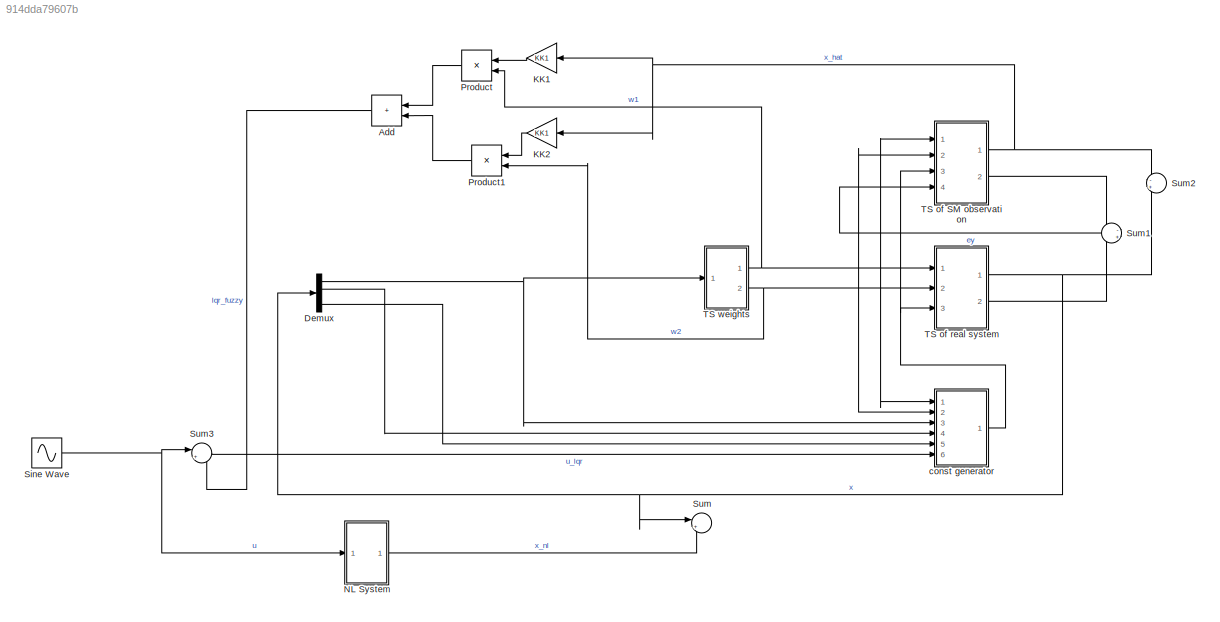
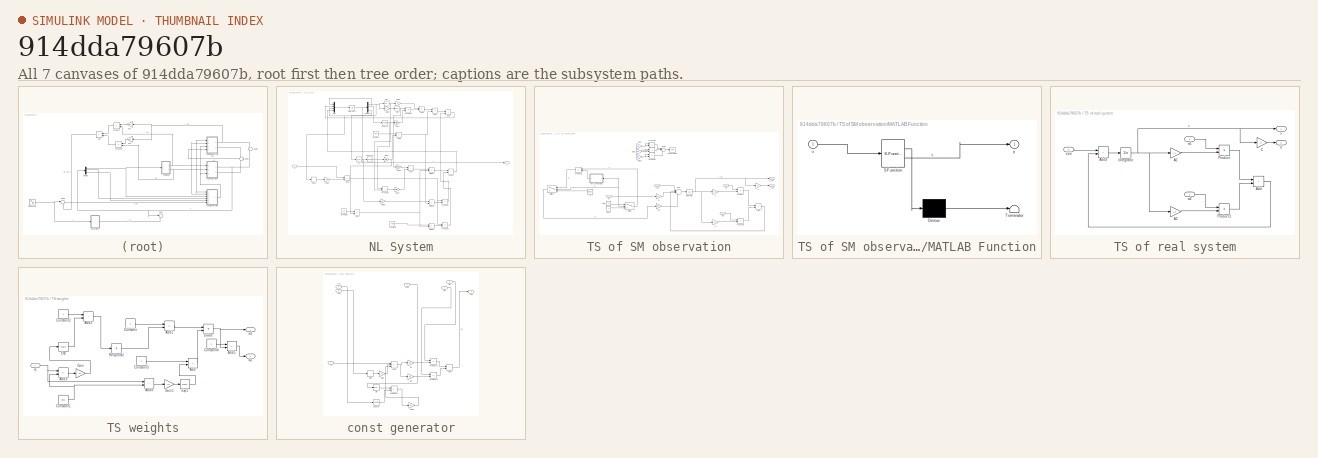
[diagram: thumbnail index - all 7 canvases of the model, root first then tree order]
MODEL slx_914dda79607b
KIND model
CONFIG AbsTol = auto
CONFIG EnableMultiTasking = off
CONFIG FixedStep = auto
CONFIG MaxStep = auto
CONFIG MinStep = auto
CONFIG RelTol = 1e-3
CONFIG SampleTimeConstraint = Unconstrained
CONFIG Solver = VariableStepAuto
CONFIG SolverName = VariableStepAuto
CONFIG StartTime = 0.0
CONFIG StopTime = 150
BLOCK [Sum] Add
  IconShape = rectangular
  Ports = [2, 1]
BLOCK [Demux] Demux
  Ports = [1, 4]
BLOCK [Gain] KK1
  Gain = KK1
  Multiplication = Matrix(K*u)
BLOCK [Gain] KK2
  Gain = KK1
  Multiplication = Matrix(K*u)
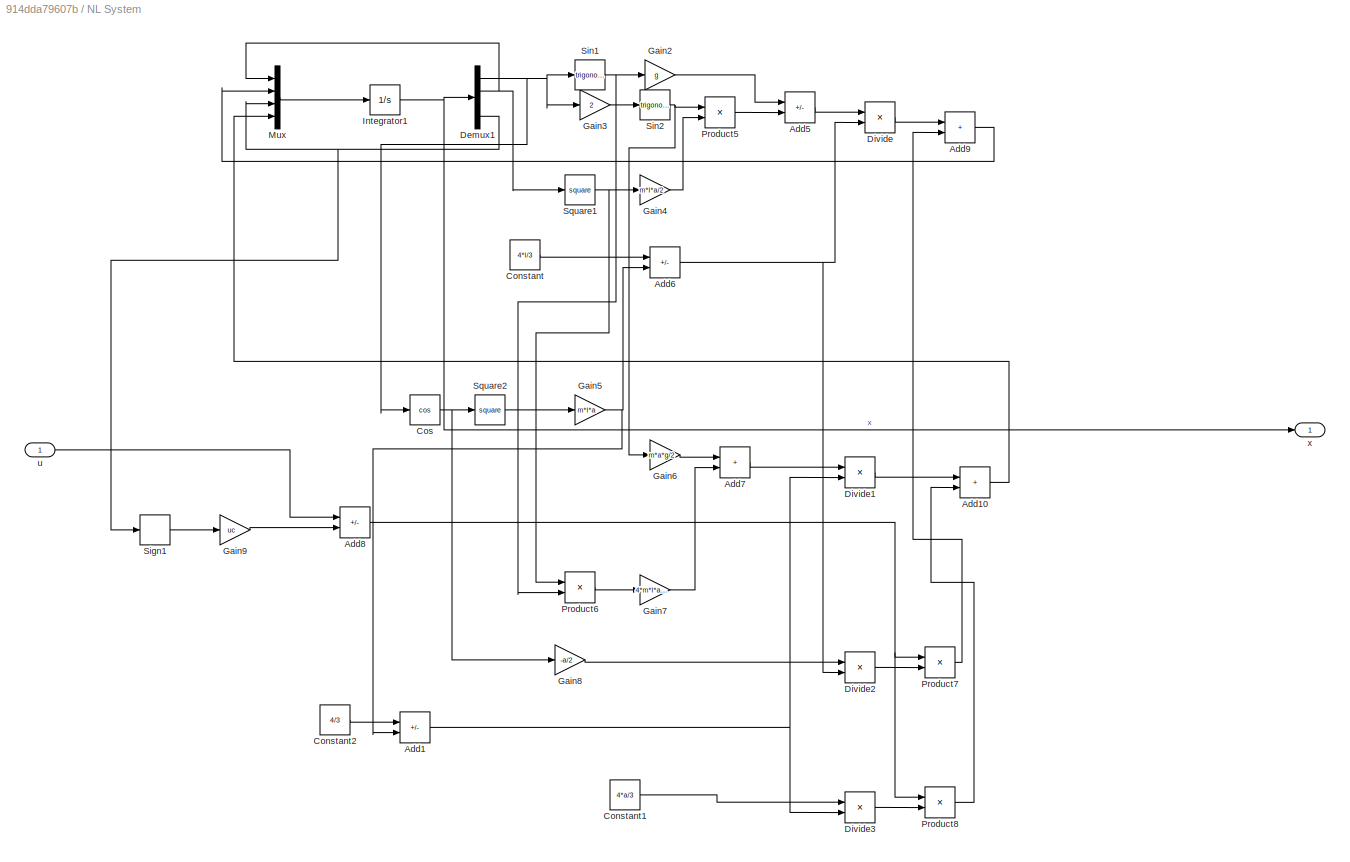
BLOCK [SubSystem] NL System
  Ports = [1, 1]
  RequestExecContextInheritance = off
BLOCK [Sum] NL System/Add1
  IconShape = rectangular
  Inputs = +-
  Ports = [2, 1]
BLOCK [Sum] NL System/Add10
  IconShape = rectangular
  Ports = [2, 1]
BLOCK [Sum] NL System/Add5
  IconShape = rectangular
  Inputs = --
  Ports = [2, 1]
BLOCK [Sum] NL System/Add6
  IconShape = rectangular
  Inputs = +-
  Ports = [2, 1]
BLOCK [Sum] NL System/Add7
  IconShape = rectangular
  Ports = [2, 1]
BLOCK [Sum] NL System/Add8
  IconShape = rectangular
  Inputs = +-
  Ports = [2, 1]
BLOCK [Sum] NL System/Add9
  IconShape = rectangular
  Ports = [2, 1]
BLOCK [Constant] NL System/Constant
  Value = 4*l/3
BLOCK [Constant] NL System/Constant1
  Value = 4*a/3
BLOCK [Constant] NL System/Constant2
  Value = 4/3
BLOCK [Trigonometry] NL System/Cos
  Operator = cos
  Ports = [1, 1]
BLOCK [Demux] NL System/Demux1
  Ports = [1, 4]
BLOCK [Product] NL System/Divide
  Inputs = */
  Ports = [2, 1]
BLOCK [Product] NL System/Divide1
  Inputs = */
  Ports = [2, 1]
BLOCK [Product] NL System/Divide2
  Inputs = */
  Ports = [2, 1]
BLOCK [Product] NL System/Divide3
  Inputs = */
  Ports = [2, 1]
BLOCK [Gain] NL System/Gain2
  Gain = g
BLOCK [Gain] NL System/Gain3
  Gain = 2
BLOCK [Gain] NL System/Gain4
  Gain = m*l*a/2
BLOCK [Gain] NL System/Gain5
  Gain = m*l*a
BLOCK [Gain] NL System/Gain6
  Gain = m*a*g/2
BLOCK [Gain] NL System/Gain7
  Gain = 4*m*l*a/3
BLOCK [Gain] NL System/Gain8
  Gain = -a/2
BLOCK [Gain] NL System/Gain9
  Gain = uc
BLOCK [Integrator] NL System/Integrator1
  InitialCondition = x0
  Ports = [1, 1]
BLOCK [Mux] NL System/Mux
  DisplayOption = bar
  Ports = [4, 1]
BLOCK [Product] NL System/Product5
  Ports = [2, 1]
BLOCK [Product] NL System/Product6
  Ports = [2, 1]
BLOCK [Product] NL System/Product7
  Ports = [2, 1]
BLOCK [Product] NL System/Product8
  Ports = [2, 1]
BLOCK [Signum] NL System/Sign1
BLOCK [Trigonometry] NL System/Sin1
  Ports = [1, 1]
BLOCK [Trigonometry] NL System/Sin2
  Ports = [1, 1]
BLOCK [Math] NL System/Square1
  Operator = square
  Ports = [1, 1]
BLOCK [Math] NL System/Square2
  Operator = square
  Ports = [1, 1]
BLOCK [Inport] NL System/u
BLOCK [Outport] NL System/x
BLOCK [Product] Product
  Ports = [2, 1]
BLOCK [Product] Product1
  Ports = [2, 1]
BLOCK [Sin] Sine Wave
  Amplitude = 10
  Frequency = 5
  Ports = [0, 1]
  SampleTime = 0
BLOCK [Sum] Sum
  Inputs = |+-
  Ports = [2, 1]
BLOCK [Sum] Sum1
  Inputs = -+
  Ports = [2, 1]
BLOCK [Sum] Sum2
  Inputs = -+
  Ports = [2, 1]
BLOCK [Sum] Sum3
  Inputs = |+-
  Ports = [2, 1]
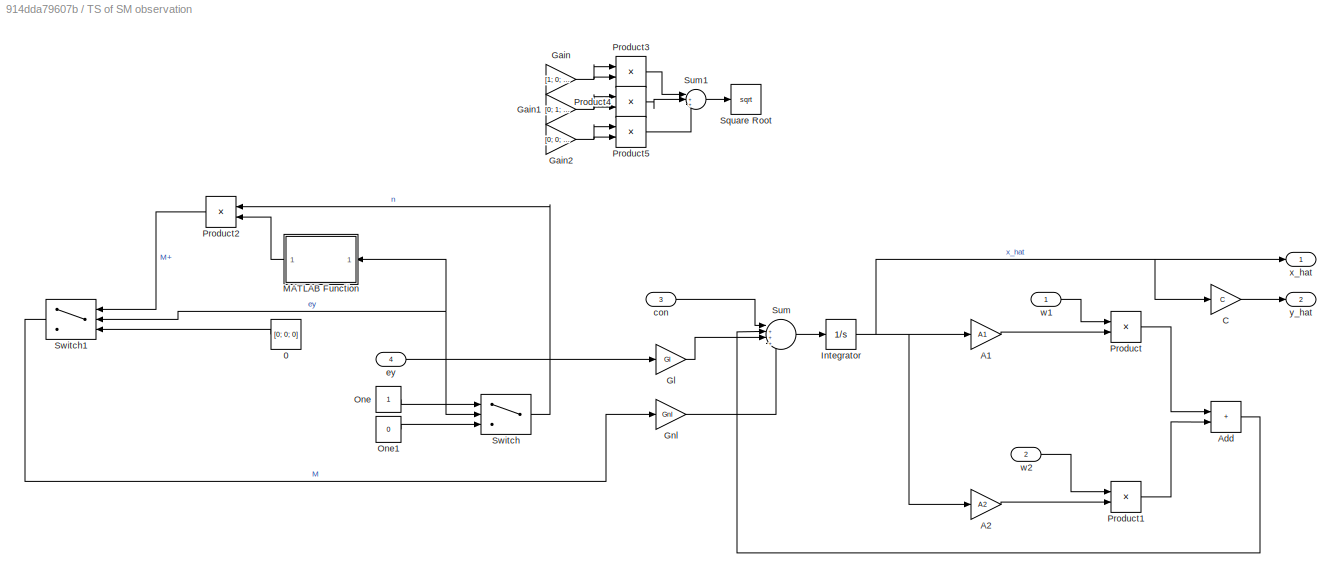
BLOCK [SubSystem] TS of SM observation
  Ports = [4, 2]
  RequestExecContextInheritance = off
BLOCK [Constant] TS of SM observation/0
  OutDataTypeStr = Inherit: Inherit via back propagation
  Value = [0; 0; 0]
  VectorParams1D = off
BLOCK [Gain] TS of SM observation/A1
  Gain = A1
  Multiplication = Matrix(K*u)
BLOCK [Gain] TS of SM observation/A2
  Gain = A2
  Multiplication = Matrix(K*u)
BLOCK [Sum] TS of SM observation/Add
  IconShape = rectangular
  Ports = [2, 1]
BLOCK [Gain] TS of SM observation/C
  Gain = C
  Multiplication = Matrix(K*u)
BLOCK [Gain] TS of SM observation/Gain
  Commented = on
  Gain = [1; 0; 0]
  Multiplication = Matrix(K*u)
BLOCK [Gain] TS of SM observation/Gain1
  Commented = on
  Gain = [0; 1; 0]
  Multiplication = Matrix(K*u)
BLOCK [Gain] TS of SM observation/Gain2
  Commented = on
  Gain = [0; 0; 1]
  Multiplication = Matrix(K*u)
BLOCK [Gain] TS of SM observation/Gl
  Gain = Gl
  Multiplication = Matrix(K*u)
BLOCK [Gain] TS of SM observation/Gnl
  Gain = Gnl
  Multiplication = Matrix(K*u)
BLOCK [Integrator] TS of SM observation/Integrator
  InitialCondition = [0; 0; 0; 0]
  Ports = [1, 1]
BLOCK [SubSystem] TS of SM observation/MATLAB Function
  ErrorFcn = Stateflow.Translate.translate
  PermitHierarchicalResolution = ExplicitOnly
  Ports = [1, 1]
  RequestExecContextInheritance = off
  SFBlockType = MATLAB Function
  TreatAsAtomicUnit = on
BLOCK [Demux] TS of SM observation/MATLAB Function/ Demux 
  Outputs = 1
  Ports = [1, 1]
BLOCK [S-Function] TS of SM observation/MATLAB Function/ SFunction 
  EnableBusSupport = on
  FunctionName = sf_sfun
  PortCounts = [1 2]
  Ports = [1, 2]
  SFcnIsStateOwnerBlock = off
  SFunctionDeploymentMode = off
  Tag = Stateflow S-Function 2
BLOCK [Terminator] TS of SM observation/MATLAB Function/ Terminator 
BLOCK [Inport] TS of SM observation/MATLAB Function/u
BLOCK [Outport] TS of SM observation/MATLAB Function/y
BLOCK [Constant] TS of SM observation/One
  OutDataTypeStr = Inherit: Inherit via back propagation
BLOCK [Constant] TS of SM observation/One1
  OutDataTypeStr = Inherit: Inherit via back propagation
  Value = 0
BLOCK [Product] TS of SM observation/Product
  Ports = [2, 1]
BLOCK [Product] TS of SM observation/Product1
  Ports = [2, 1]
BLOCK [Product] TS of SM observation/Product2
  Ports = [2, 1]
BLOCK [Product] TS of SM observation/Product3
  Commented = on
  Ports = [2, 1]
BLOCK [Product] TS of SM observation/Product4
  Commented = on
  Ports = [2, 1]
BLOCK [Product] TS of SM observation/Product5
  Commented = on
  Ports = [2, 1]
BLOCK [Sqrt] TS of SM observation/Square Root
  Commented = on
BLOCK [Sum] TS of SM observation/Sum
  Inputs = |+++-
  Ports = [4, 1]
BLOCK [Sum] TS of SM observation/Sum1
  Commented = on
  Inputs = |+++
  Ports = [3, 1]
BLOCK [Switch] TS of SM observation/Switch
  Criteria = u2 ~= 0
  InputSameDT = off
  SaturateOnIntegerOverflow = off
  ZeroCross = off
BLOCK [Switch] TS of SM observation/Switch1
  Criteria = u2 ~= 0
  InputSameDT = off
  SaturateOnIntegerOverflow = off
  ZeroCross = off
BLOCK [Inport] TS of SM observation/con
  Port = 3
BLOCK [Inport] TS of SM observation/ey
  Port = 4
BLOCK [Inport] TS of SM observation/w1
BLOCK [Inport] TS of SM observation/w2
  Port = 2
BLOCK [Outport] TS of SM observation/x_hat
BLOCK [Outport] TS of SM observation/y_hat
  Port = 2
BLOCK [SubSystem] TS of real system
  Ports = [3, 2]
  RequestExecContextInheritance = off
BLOCK [Gain] TS of real system/A1
  Gain = A1
  Multiplication = Matrix(K*u)
BLOCK [Gain] TS of real system/A2
  Gain = A2
  Multiplication = Matrix(K*u)
BLOCK [Sum] TS of real system/Add
  IconShape = rectangular
  Ports = [2, 1]
BLOCK [Sum] TS of real system/Add4
  IconShape = rectangular
  Ports = [2, 1]
BLOCK [Gain] TS of real system/C
  Gain = C
  Multiplication = Matrix(K*u)
BLOCK [Integrator] TS of real system/Integrator
  InitialCondition = x0
  Ports = [1, 1]
BLOCK [Product] TS of real system/Product
  Ports = [2, 1]
BLOCK [Product] TS of real system/Product1
  Ports = [2, 1]
BLOCK [Inport] TS of real system/con
  Port = 3
BLOCK [Inport] TS of real system/w1
BLOCK [Inport] TS of real system/w2
  Port = 2
BLOCK [Outport] TS of real system/x
BLOCK [Outport] TS of real system/y
  Port = 2
BLOCK [SubSystem] TS weights
  Ports = [1, 2]
  RequestExecContextInheritance = off
BLOCK [Sum] TS weights/Add
  IconShape = rectangular
  Ports = [2, 1]
BLOCK [Sum] TS weights/Add1
  IconShape = rectangular
  Inputs = +-
  Ports = [2, 1]
BLOCK [Sum] TS weights/Add2
  IconShape = rectangular
  Ports = [2, 1]
BLOCK [Sum] TS weights/Add3
  IconShape = rectangular
  Inputs = +-
  Ports = [2, 1]
BLOCK [Sum] TS weights/Add4
  IconShape = rectangular
  Ports = [2, 1]
BLOCK [Sum] TS weights/Add5
  IconShape = rectangular
  Inputs = +-
  Ports = [2, 1]
BLOCK [Constant] TS weights/Constant
BLOCK [Constant] TS weights/Constant1
  Value = pi/8
BLOCK [Constant] TS weights/Constant2
BLOCK [Constant] TS weights/Constant3
BLOCK [Constant] TS weights/Constant4
BLOCK [Product] TS weights/Divide
  Inputs = */
  Ports = [2, 1]
BLOCK [Math] TS weights/Exp
  Ports = [1, 1]
BLOCK [Math] TS weights/Exp1
  Ports = [1, 1]
BLOCK [Gain] TS weights/Gain
  Gain = -14
BLOCK [Gain] TS weights/Gain1
  Gain = -14
BLOCK [Product] TS weights/Reciprocal
  Inputs = /
  Ports = [1, 1]
  RndMeth = Zero
  SaturateOnIntegerOverflow = on
BLOCK [Outport] TS weights/w1
BLOCK [Outport] TS weights/w2
  Port = 2
BLOCK [Inport] TS weights/x1
BLOCK [SubSystem] const generator
  Ports = [6, 1]
  RequestExecContextInheritance = off
BLOCK [Sum] const generator/Add2
  IconShape = rectangular
  Ports = [2, 1]
BLOCK [Sum] const generator/Add3
  IconShape = rectangular
  Inputs = +-+
  Ports = [3, 1]
BLOCK [Gain] const generator/B1
  Gain = B1
  Multiplication = Matrix(K*u)
BLOCK [Gain] const generator/B2
  Gain = B2
  Multiplication = Matrix(K*u)
BLOCK [Gain] const generator/Gain
  Gain = uc
BLOCK [Gain] const generator/Gain1
  Gain = m*l
BLOCK [Inport] const generator/In2
  Port = 3
BLOCK [Inport] const generator/In3
  Port = 4
BLOCK [Inport] const generator/In5
  Port = 5
BLOCK [Product] const generator/Product2
  Ports = [2, 1]
BLOCK [Product] const generator/Product3
  Ports = [2, 1]
BLOCK [Product] const generator/Product4
  Ports = [2, 1]
BLOCK [Signum] const generator/Sign
BLOCK [Trigonometry] const generator/Sin
  Ports = [1, 1]
BLOCK [Math] const generator/Square
  Operator = square
  Ports = [1, 1]
BLOCK [Outport] const generator/con
BLOCK [Inport] const generator/u
  Port = 6
BLOCK [Inport] const generator/w1
BLOCK [Inport] const generator/w2
  Port = 2
LINE Add:1 -> Sum3:2
NET Demux:1 -> TS weights:1, const generator:3
LINE Demux:2 -> const generator:4
LINE Demux:4 -> const generator:5
LINE KK1:1 -> Product:1
LINE KK2:1 -> Product1:1
LINE NL System/Add10:1 -> NL System/Mux:4
NET NL System/Add1:1 -> NL System/Divide1:2, NL System/Divide3:2
LINE NL System/Add5:1 -> NL System/Divide:1
NET NL System/Add6:1 -> NL System/Divide2:2, NL System/Divide:2
LINE NL System/Add7:1 -> NL System/Divide1:1
NET NL System/Add8:1 -> NL System/Product7:1, NL System/Product8:1
LINE NL System/Add9:1 -> NL System/Mux:2
LINE NL System/Constant1:1 -> NL System/Divide3:1
LINE NL System/Constant2:1 -> NL System/Add1:1
LINE NL System/Constant:1 -> NL System/Add6:1
NET NL System/Cos:1 -> NL System/Gain8:1, NL System/Square2:1
NET NL System/Demux1:1 -> NL System/Cos:1, NL System/Gain3:1, NL System/Sin1:1
NET NL System/Demux1:2 -> NL System/Mux:1, NL System/Square1:1
NET NL System/Demux1:4 -> NL System/Mux:3, NL System/Sign1:1
LINE NL System/Divide1:1 -> NL System/Add10:1
LINE NL System/Divide2:1 -> NL System/Product7:2
LINE NL System/Divide3:1 -> NL System/Product8:2
LINE NL System/Divide:1 -> NL System/Add9:1
LINE NL System/Gain2:1 -> NL System/Add5:1
LINE NL System/Gain3:1 -> NL System/Sin2:1
LINE NL System/Gain4:1 -> NL System/Product5:2
NET NL System/Gain5:1 -> NL System/Add1:2, NL System/Add6:2
LINE NL System/Gain6:1 -> NL System/Add7:1
LINE NL System/Gain7:1 -> NL System/Add7:2
LINE NL System/Gain8:1 -> NL System/Divide2:1
LINE NL System/Gain9:1 -> NL System/Add8:2
NET NL System/Integrator1:1 -> NL System/Demux1:1, NL System/x:1
LINE NL System/Mux:1 -> NL System/Integrator1:1
LINE NL System/Product5:1 -> NL System/Add5:2
LINE NL System/Product6:1 -> NL System/Gain7:1
LINE NL System/Product7:1 -> NL System/Add9:2
LINE NL System/Product8:1 -> NL System/Add10:2
LINE NL System/Sign1:1 -> NL System/Gain9:1
NET NL System/Sin1:1 -> NL System/Gain2:1, NL System/Product6:2
NET NL System/Sin2:1 -> NL System/Gain6:1, NL System/Product5:1
NET NL System/Square1:1 -> NL System/Gain4:1, NL System/Product6:1
LINE NL System/Square2:1 -> NL System/Gain5:1
LINE NL System/u:1 -> NL System/Add8:1
LINE NL System:1 -> Sum:2
LINE Product1:1 -> Add:2
LINE Product:1 -> Add:1
NET Sine Wave:1 -> NL System:1, Sum3:1
LINE Sum1:1 -> TS of SM observation:4
LINE Sum3:1 -> const generator:6
LINE TS of SM observation/0:1 -> TS of SM observation/Switch1:3
LINE TS of SM observation/A1:1 -> TS of SM observation/Product:2
LINE TS of SM observation/A2:1 -> TS of SM observation/Product1:2
LINE TS of SM observation/Add:1 -> TS of SM observation/Sum:2
LINE TS of SM observation/C:1 -> TS of SM observation/y_hat:1
NET TS of SM observation/Gain1:1 -> TS of SM observation/Product4:1, TS of SM observation/Product4:2
NET TS of SM observation/Gain2:1 -> TS of SM observation/Product5:1, TS of SM observation/Product5:2
NET TS of SM observation/Gain:1 -> TS of SM observation/Product3:1, TS of SM observation/Product3:2
LINE TS of SM observation/Gl:1 -> TS of SM observation/Sum:3
LINE TS of SM observation/Gnl:1 -> TS of SM observation/Sum:4
NET TS of SM observation/Integrator:1 -> TS of SM observation/A1:1, TS of SM observation/A2:1, TS of SM observation/C:1, TS of SM observation/x_hat:1
LINE TS of SM observation/MATLAB Function:1 -> TS of SM observation/Product2:2
LINE TS of SM observation/One1:1 -> TS of SM observation/Switch:3
LINE TS of SM observation/One:1 -> TS of SM observation/Switch:1
LINE TS of SM observation/Product1:1 -> TS of SM observation/Add:2
LINE TS of SM observation/Product2:1 -> TS of SM observation/Switch1:1
LINE TS of SM observation/Product3:1 -> TS of SM observation/Sum1:1
LINE TS of SM observation/Product4:1 -> TS of SM observation/Sum1:2
LINE TS of SM observation/Product5:1 -> TS of SM observation/Sum1:3
LINE TS of SM observation/Product:1 -> TS of SM observation/Add:1
LINE TS of SM observation/Sum1:1 -> TS of SM observation/Square Root:1
LINE TS of SM observation/Sum:1 -> TS of SM observation/Integrator:1
LINE TS of SM observation/Switch1:1 -> TS of SM observation/Gnl:1
LINE TS of SM observation/Switch:1 -> TS of SM observation/Product2:1
LINE TS of SM observation/con:1 -> TS of SM observation/Sum:1
NET TS of SM observation/ey:1 -> TS of SM observation/Gl:1, TS of SM observation/MATLAB Function:1, TS of SM observation/Switch1:2, TS of SM observation/Switch:2
LINE TS of SM observation/w1:1 -> TS of SM observation/Product:1
LINE TS of SM observation/w2:1 -> TS of SM observation/Product1:1
NET TS of SM observation:1 -> KK1:1, KK2:1, Sum2:1
LINE TS of SM observation:2 -> Sum1:1
LINE TS of real system/A1:1 -> TS of real system/Product:2
LINE TS of real system/A2:1 -> TS of real system/Product1:2
LINE TS of real system/Add4:1 -> TS of real system/Integrator:1
LINE TS of real system/Add:1 -> TS of real system/Add4:2
LINE TS of real system/C:1 -> TS of real system/y:1
NET TS of real system/Integrator:1 -> TS of real system/A1:1, TS of real system/A2:1, TS of real system/C:1, TS of real system/x:1
LINE TS of real system/Product1:1 -> TS of real system/Add:2
LINE TS of real system/Product:1 -> TS of real system/Add:1
LINE TS of real system/con:1 -> TS of real system/Add4:1
LINE TS of real system/w1:1 -> TS of real system/Product:1
LINE TS of real system/w2:1 -> TS of real system/Product1:1
NET TS of real system:1 -> Demux:1, Sum2:2, Sum:1
LINE TS of real system:2 -> Sum1:2
LINE TS weights/Add1:1 -> TS weights/Divide:1
LINE TS weights/Add2:1 -> TS weights/Reciprocal:1
LINE TS weights/Add3:1 -> TS weights/Gain:1
LINE TS weights/Add4:1 -> TS weights/Gain1:1
LINE TS weights/Add5:1 -> TS weights/w2:1
LINE TS weights/Add:1 -> TS weights/Divide:2
NET TS weights/Constant1:1 -> TS weights/Add3:2, TS weights/Add4:2
LINE TS weights/Constant2:1 -> TS weights/Add2:1
LINE TS weights/Constant3:1 -> TS weights/Add:1
LINE TS weights/Constant4:1 -> TS weights/Add5:1
LINE TS weights/Constant:1 -> TS weights/Add1:1
NET TS weights/Divide:1 -> TS weights/Add5:2, TS weights/w1:1
LINE TS weights/Exp1:1 -> TS weights/Add:2
LINE TS weights/Exp:1 -> TS weights/Add2:2
LINE TS weights/Gain1:1 -> TS weights/Exp1:1
LINE TS weights/Gain:1 -> TS weights/Exp:1
LINE TS weights/Reciprocal:1 -> TS weights/Add1:2
NET TS weights/x1:1 -> TS weights/Add3:1, TS weights/Add4:1
NET TS weights:1 -> Product:2, TS of SM observation:1, TS of real system:1, const generator:1
NET TS weights:2 -> Product1:2, TS of SM observation:2, TS of real system:2, const generator:2
LINE const generator/Add2:1 -> const generator/con:1
NET const generator/Add3:1 -> const generator/B1:1, const generator/B2:1
LINE const generator/B1:1 -> const generator/Product2:2
LINE const generator/B2:1 -> const generator/Product3:2
LINE const generator/Gain1:1 -> const generator/Add3:3
LINE const generator/Gain:1 -> const generator/Add3:2
LINE const generator/In2:1 -> const generator/Sin:1
LINE const generator/In3:1 -> const generator/Square:1
LINE const generator/In5:1 -> const generator/Sign:1
LINE const generator/Product2:1 -> const generator/Add2:1
LINE const generator/Product3:1 -> const generator/Add2:2
LINE const generator/Product4:1 -> const generator/Gain1:1
LINE const generator/Sign:1 -> const generator/Gain:1
LINE const generator/Sin:1 -> const generator/Product4:1
LINE const generator/Square:1 -> const generator/Product4:2
LINE const generator/u:1 -> const generator/Add3:1
LINE const generator/w1:1 -> const generator/Product2:1
LINE const generator/w2:1 -> const generator/Product3:1
NET const generator:1 -> TS of SM observation:3, TS of real system:3
note: NET lines group one-source signal fan-out (src -> all destinations, sorted); 1:1 wires keep LINE
CHART TS of SM observation/MATLAB Function states=1 transitions=1
  STATE_LABEL 'eML_blk_kernel()'
  STATE_LABEL 'SCRIPT:\nfunction y = fcn(u)\n    \n    P2 = [0.5 0 0; 0 0.25 0; 0 0 0.125];\n\ny = -norm(P2)*inv(P2)*u/norm(u)\n'
CHART  states=0 transitions=0
